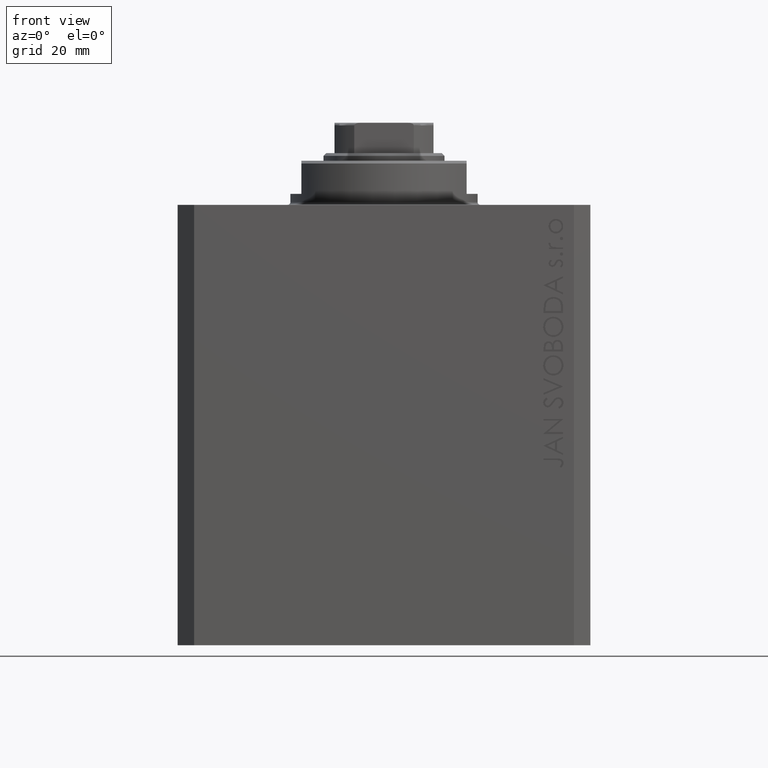
[diagram: clean part render]
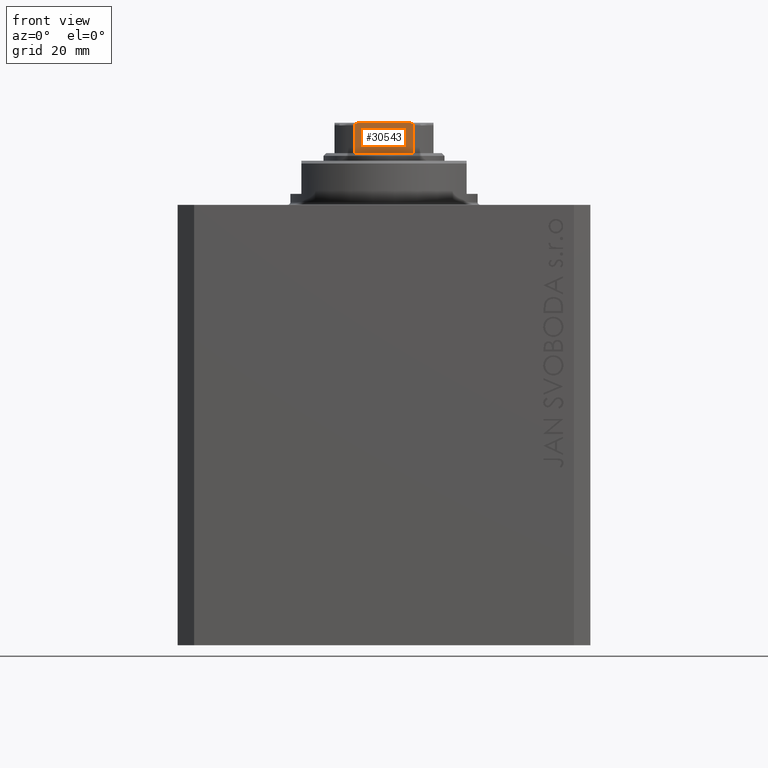
[diagram: same view with one face highlighted and labeled with its STEP entity id]
A machine part, front view. The second image highlights one B-rep face of the part: STEP entity #30543.
In plain terms, the highlighted planar face has unit normal (0, 1, 0).
Its self-contained STEP definition (entity closure, byte-faithful):
#993 = LINE ( 'NONE', #38560, #16991 ) ;
#998 = ORIENTED_EDGE ( 'NONE', *, *, #28427, .T. ) ;
#2041 = ORIENTED_EDGE ( 'NONE', *, *, #13184, .T. ) ;
#2242 = EDGE_CURVE ( 'NONE', #15236, #38426, #19005, .T. ) ;
#3942 = DIRECTION ( 'NONE',  ( -0.000000000000000000, -0.000000000000000000, 1.000000000000000000 ) ) ;
#4870 = VERTEX_POINT ( 'NONE', #22202 ) ;
#4898 = VECTOR ( 'NONE', #28071, 1000.000000000000000 ) ;
#5501 = CARTESIAN_POINT ( 'NONE',  ( 4.358898943540671311, -9.000000000000001776, 85.00000000000000000 ) ) ;
#5737 = CARTESIAN_POINT ( 'NONE',  ( 5.298186678102087654, -9.000000000000003553, 84.73387812150049569 ) ) ;
#5956 = CARTESIAN_POINT ( 'NONE',  ( 5.408326913195988794, -8.999999999999998224, 84.50000000000000000 ) ) ;
#6071 = VERTEX_POINT ( 'NONE', #10375 ) ;
#6319 = CARTESIAN_POINT ( 'NONE',  ( 4.358898943540671311, -9.000000000000001776, 85.00000000000000000 ) ) ;
#7391 = DIRECTION ( 'NONE',  ( 1.000000000000000000, 0.000000000000000000, 0.000000000000000000 ) ) ;
#7749 = DIRECTION ( 'NONE',  ( 0.000000000000000000, -0.000000000000000000, 1.000000000000000000 ) ) ;
#9046 = CARTESIAN_POINT ( 'NONE',  ( -4.569272810556661568, -9.000000000000003553, 85.00000000000000000 ) ) ;
#9283 = EDGE_CURVE ( 'NONE', #4870, #6071, #33734, .T. ) ;
#9503 = CARTESIAN_POINT ( 'NONE',  ( -4.775913644518296586, -9.000000000000003553, 84.97814607430834144 ) ) ;
#9789 = AXIS2_PLACEMENT_3D ( 'NONE', #34475, #34701, #7749 ) ;
#10038 = VECTOR ( 'NONE', #7391, 1000.000000000000000 ) ;
#10375 = CARTESIAN_POINT ( 'NONE',  ( -5.408326913195988794, -8.999999999999998224, 84.50000000000000000 ) ) ;
#13140 = DIRECTION ( 'NONE',  ( -0.000000000000000000, -0.000000000000000000, 1.000000000000000000 ) ) ;
#13184 = EDGE_CURVE ( 'NONE', #4870, #16368, #41636, .T. ) ;
#13309 = ORIENTED_EDGE ( 'NONE', *, *, #44037, .F. ) ;
#13332 = CARTESIAN_POINT ( 'NONE',  ( -5.074490744525474994, -9.000000000000000000, 84.87872007843323274 ) ) ;
#14623 = CARTESIAN_POINT ( 'NONE',  ( -8.999999999999998224, -9.000000000000001776, 85.00000000000000000 ) ) ;
#15236 = VERTEX_POINT ( 'NONE', #25227 ) ;
#16065 = CARTESIAN_POINT ( 'NONE',  ( -5.297634495023393342, -9.000000000000001776, 84.73442280527801529 ) ) ;
#16368 = VERTEX_POINT ( 'NONE', #17683 ) ;
#16559 = CARTESIAN_POINT ( 'NONE',  ( -5.408326913195988794, -8.999999999999998224, -0.001000000000001000089 ) ) ;
#16991 = VECTOR ( 'NONE', #3942, 1000.000000000000000 ) ;
#17683 = CARTESIAN_POINT ( 'NONE',  ( 5.408326913195988794, -8.999999999999998224, 79.50000000000000000 ) ) ;
#18022 = VERTEX_POINT ( 'NONE', #40392 ) ;
#19005 = B_SPLINE_CURVE_WITH_KNOTS ( 'NONE', 3,
 ( #5956, #25877, #26104, #29719, #5737, #26548, #43495, #19764, #36277, #5501 ),
 .UNSPECIFIED., .F., .F.,
 ( 4, 2, 2, 2, 4 ),
 ( 0.000000000000000000, 0.0001582447020888061039, 0.0003164894041776122077, 0.0006329788083552503278, 0.001265957616710526893 ),
 .UNSPECIFIED. ) ;
#19764 = CARTESIAN_POINT ( 'NONE',  ( 4.778533838065914807, -9.000000000000003553, 84.97782914764698603 ) ) ;
#20683 = PLANE ( 'NONE',  #9789 ) ;
#22202 = CARTESIAN_POINT ( 'NONE',  ( -5.408326913195988794, -8.999999999999998224, 79.50000000000000000 ) ) ;
#22411 = ORIENTED_EDGE ( 'NONE', *, *, #38435, .T. ) ;
#22839 = CARTESIAN_POINT ( 'NONE',  ( -5.390945448132520745, -9.000000000000001776, 84.60548165389701580 ) ) ;
#23290 = CARTESIAN_POINT ( 'NONE',  ( -5.173732970196568637, -9.000000000000001776, 84.83318086437986949 ) ) ;
#24673 = CARTESIAN_POINT ( 'NONE',  ( -8.999999999999998224, -9.000000000000001776, 79.50000000000000000 ) ) ;
#25227 = CARTESIAN_POINT ( 'NONE',  ( 5.408326913195988794, -8.999999999999998224, 84.50000000000000000 ) ) ;
#25877 = CARTESIAN_POINT ( 'NONE',  ( 5.408326913195988794, -8.999999999999996447, 84.55357207273350184 ) ) ;
#26104 = CARTESIAN_POINT ( 'NONE',  ( 5.390954572107321319, -9.000000000000001776, 84.60536285214001850 ) ) ;
#26469 = CARTESIAN_POINT ( 'NONE',  ( -4.358898943540671311, -9.000000000000001776, 85.00000000000000000 ) ) ;
#26548 = CARTESIAN_POINT ( 'NONE',  ( 5.174818616237119251, -9.000000000000003553, 84.83252188465333177 ) ) ;
#28071 = DIRECTION ( 'NONE',  ( 1.000000000000000000, 0.000000000000000000, 0.000000000000000000 ) ) ;
#28427 = EDGE_CURVE ( 'NONE', #16368, #15236, #993, .T. ) ;
#29719 = CARTESIAN_POINT ( 'NONE',  ( 5.335664150027720432, -9.000000000000001776, 84.69518433800129742 ) ) ;
#29865 = CARTESIAN_POINT ( 'NONE',  ( -5.335288102212750516, -9.000000000000001776, 84.69569054027621746 ) ) ;
#30543 = ADVANCED_FACE ( 'NONE', ( #37874 ), #20683, .F. ) ;
#33734 = LINE ( 'NONE', #16559, #38057 ) ;
#34475 = CARTESIAN_POINT ( 'NONE',  ( -8.999999999999998224, -9.000000000000001776, 85.00000000000000000 ) ) ;
#34701 = DIRECTION ( 'NONE',  ( 0.000000000000000000, 1.000000000000000000, 0.000000000000000000 ) ) ;
#36277 = CARTESIAN_POINT ( 'NONE',  ( 4.569278586016984889, -9.000000000000003553, 85.00000000000000000 ) ) ;
#36407 = B_SPLINE_CURVE_WITH_KNOTS ( 'NONE', 3,
 ( #26469, #9046, #9503, #13332, #23290, #16065, #29865, #22839, #36647, #37101 ),
 .UNSPECIFIED., .F., .F.,
 ( 4, 2, 2, 2, 4 ),
 ( 0.000000000000000000, 0.0006221106941441024865, 0.0009331660412161548682, 0.001088693714752182089, 0.001244221388288209310 ),
 .UNSPECIFIED. ) ;
#36647 = CARTESIAN_POINT ( 'NONE',  ( -5.408326913195980801, -9.000000000000001776, 84.55374346731883861 ) ) ;
#37101 = CARTESIAN_POINT ( 'NONE',  ( -5.408326913195988794, -8.999999999999998224, 84.50000000000000000 ) ) ;
#37874 = FACE_OUTER_BOUND ( 'NONE', #42781, .T. ) ;
#38057 = VECTOR ( 'NONE', #13140, 1000.000000000000000 ) ;
#38426 = VERTEX_POINT ( 'NONE', #6319 ) ;
#38435 = EDGE_CURVE ( 'NONE', #18022, #6071, #36407, .T. ) ;
#38560 = CARTESIAN_POINT ( 'NONE',  ( 5.408326913195988794, -8.999999999999998224, -0.001000000000001000089 ) ) ;
#38603 = LINE ( 'NONE', #14623, #10038 ) ;
#40392 = CARTESIAN_POINT ( 'NONE',  ( -4.358898943540671311, -9.000000000000001776, 85.00000000000000000 ) ) ;
#40650 = ORIENTED_EDGE ( 'NONE', *, *, #9283, .F. ) ;
#41636 = LINE ( 'NONE', #24673, #4898 ) ;
#42465 = ORIENTED_EDGE ( 'NONE', *, *, #2242, .T. ) ;
#42781 = EDGE_LOOP ( 'NONE', ( #13309, #22411, #40650, #2041, #998, #42465 ) ) ;
#43495 = CARTESIAN_POINT ( 'NONE',  ( 5.077896145217234647, -9.000000000000003553, 84.87730167760670952 ) ) ;
#44037 = EDGE_CURVE ( 'NONE', #18022, #38426, #38603, .T. ) ;